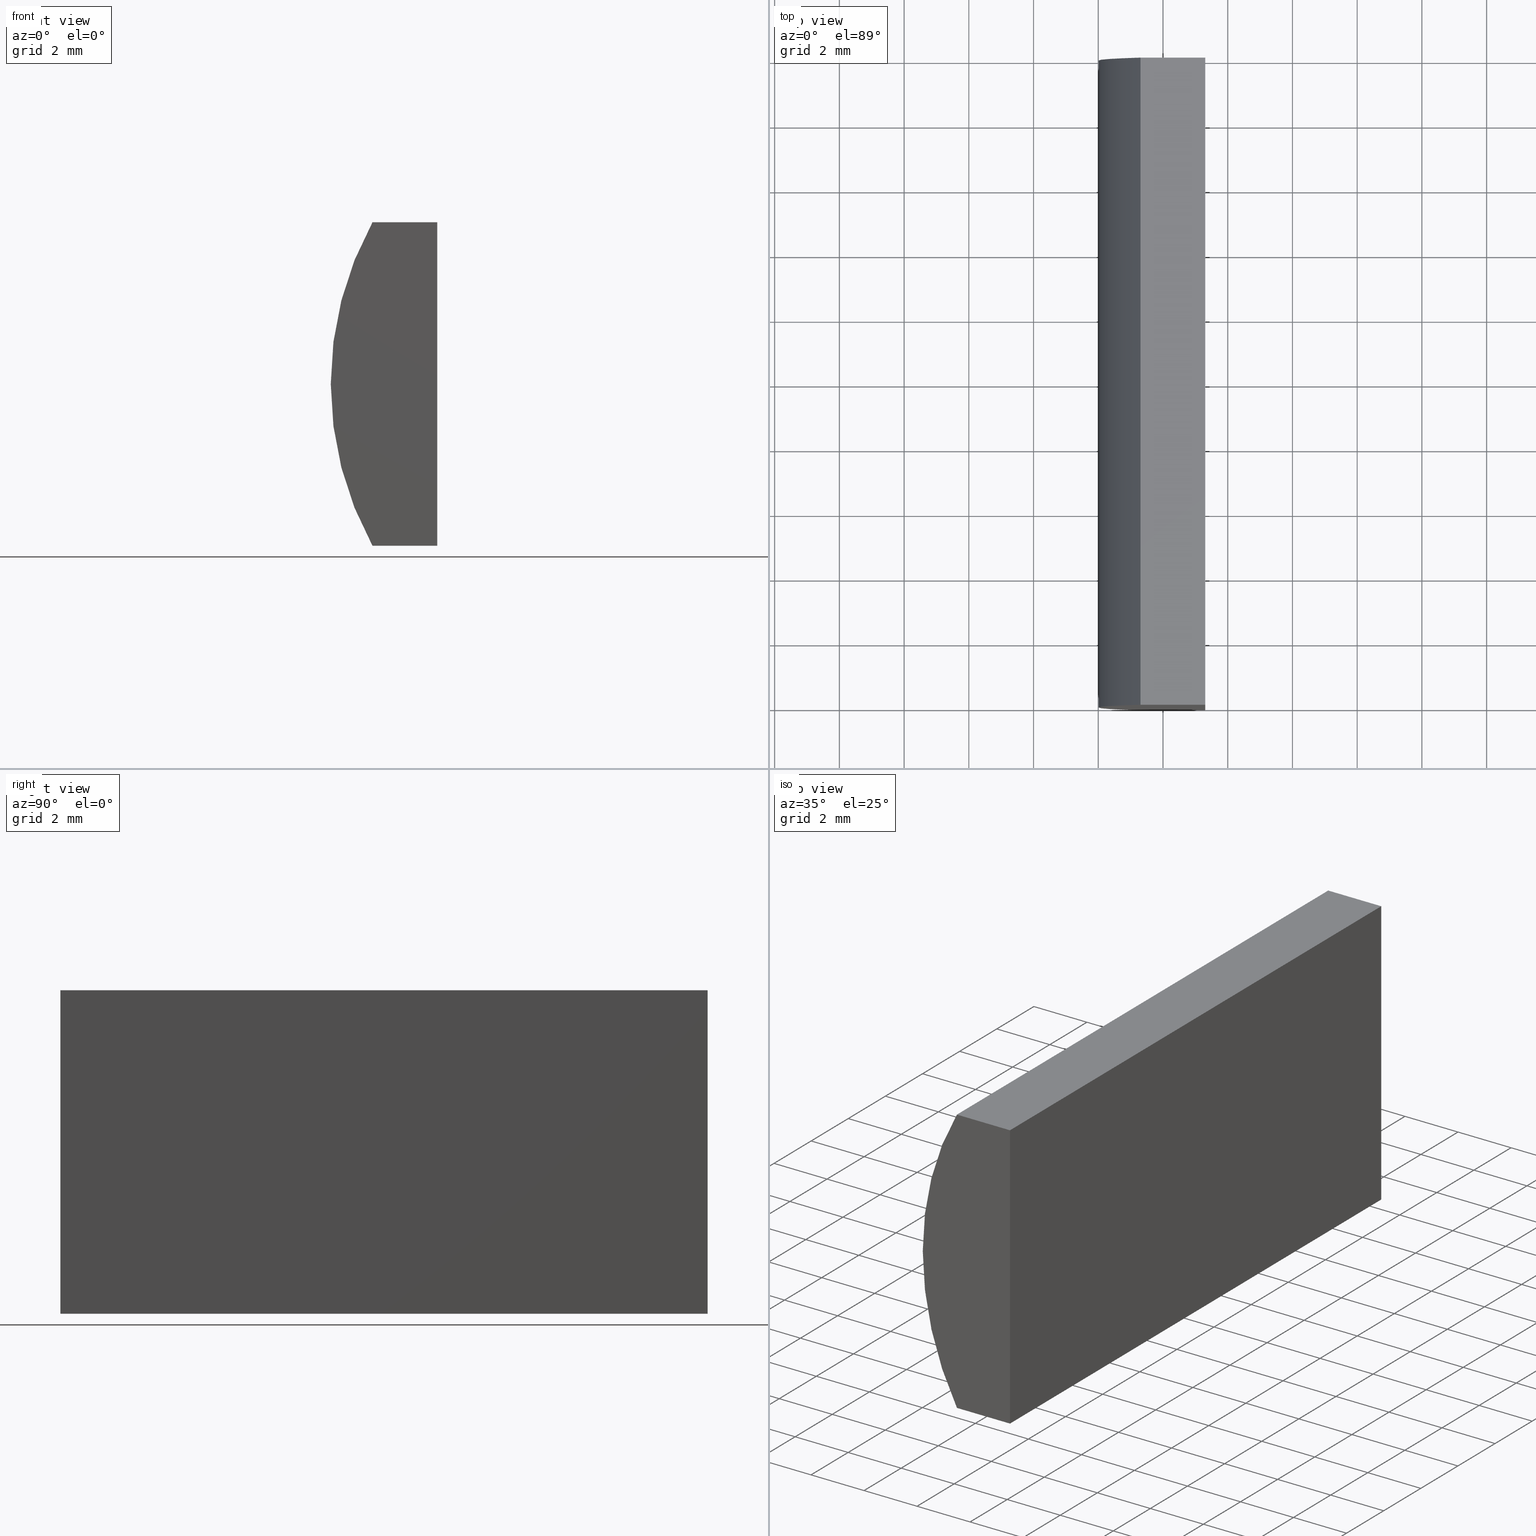
[diagram: canonical four-view strip — front | top / right | iso, engineering-drawing reading convention]
A machine part, canonical four-view strip (front | top / right | iso — engineering-drawing reading convention). The complete STEP part file that produces these views, byte-faithful:
ISO-10303-21;
HEADER;
FILE_DESCRIPTION (( 'STEP AP214' ),
    '1' );
FILE_NAME ('155026.STEP',
    '2019-06-17T05:59:15',
    ( 'user' ),
    ( '΢���й�' ),
    'SwSTEP 2.0',
    'SolidWorks 2016',
    '' );
FILE_SCHEMA (( 'AUTOMOTIVE_DESIGN' ));
ENDSEC;

DATA;
#1 = ORIENTED_EDGE ( 'NONE', *, *, #51, .T. ) ;
#2 = FACE_OUTER_BOUND ( 'NONE', #109, .T. ) ;
#3 = ADVANCED_FACE ( 'NONE', ( #134 ), #191, .F. ) ;
#4 = DIRECTION ( 'NONE',  ( 0.0000000000000000000, -0.0000000000000000000, 1.000000000000000000 ) ) ;
#5 = LINE ( 'NONE', #129, #48 ) ;
#6 = EDGE_LOOP ( 'NONE', ( #198, #196, #116, #80 ) ) ;
#7 = DIRECTION ( 'NONE',  ( 0.0000000000000000000, 0.0000000000000000000, 1.000000000000000000 ) ) ;
#8 = VERTEX_POINT ( 'NONE', #71 ) ;
#9 = PRESENTATION_STYLE_ASSIGNMENT (( #63 ) ) ;
#10 = VECTOR ( 'NONE', #160, 1000.000000000000000 ) ;
#11 = ORIENTED_EDGE ( 'NONE', *, *, #159, .F. ) ;
#12 = ORIENTED_EDGE ( 'NONE', *, *, #164, .F. ) ;
#13 = CARTESIAN_POINT ( 'NONE',  ( 4.355204334851265500, 0.0000000000000000000, 4.286263797015675000E-017 ) ) ;
#14 = DIRECTION ( 'NONE',  ( -1.000000000000000000, 0.0000000000000000000, -0.0000000000000000000 ) ) ;
#15 = PLANE ( 'NONE',  #77 ) ;
#16 = CARTESIAN_POINT ( 'NONE',  ( 4.355204334851265500, 0.0000000000000000000, 4.286263797015675000E-017 ) ) ;
#17 = EDGE_CURVE ( 'NONE', #127, #121, #94, .T. ) ;
#18 = CARTESIAN_POINT ( 'NONE',  ( -2.694795665148737900, 20.00000000000000000, -5.000000000000000000 ) ) ;
#19 = PRESENTATION_LAYER_ASSIGNMENT (  '', '', ( #41 ) ) ;
#20 = CARTESIAN_POINT ( 'NONE',  ( -4.695519393116569500, 0.0000000000000000000, -5.000000000000000000 ) ) ;
#21 =( NAMED_UNIT ( * ) SI_UNIT ( $, .STERADIAN. ) SOLID_ANGLE_UNIT ( ) );
#22 = VERTEX_POINT ( 'NONE', #65 ) ;
#23 =( LENGTH_UNIT ( ) NAMED_UNIT ( * ) SI_UNIT ( .MILLI., .METRE. ) );
#24 = EDGE_LOOP ( 'NONE', ( #140, #99, #59, #114 ) ) ;
#25 = SURFACE_SIDE_STYLE ('',( #39 ) ) ;
#26 = PLANE ( 'NONE',  #112 ) ;
#27 = VECTOR ( 'NONE', #29, 1000.000000000000000 ) ;
#28 = CARTESIAN_POINT ( 'NONE',  ( -2.694795665148737900, 20.00000000000000000, -5.000000000000000000 ) ) ;
#29 = DIRECTION ( 'NONE',  ( -3.469446951953614200E-016, -0.0000000000000000000, -1.000000000000000000 ) ) ;
#30 = CARTESIAN_POINT ( 'NONE',  ( -2.694795665148734400, 20.00000000000000000, 5.000000000000000000 ) ) ;
#31 = DIRECTION ( 'NONE',  ( -0.0000000000000000000, -1.000000000000000000, -0.0000000000000000000 ) ) ;
#32 = PLANE ( 'NONE',  #87 ) ;
#33 = PRODUCT_CONTEXT ( 'NONE', #73, 'mechanical' ) ;
#34 = VECTOR ( 'NONE', #78, 1000.000000000000000 ) ;
#35 = PRODUCT_RELATED_PRODUCT_CATEGORY ( 'part', '', ( #189 ) ) ;
#36 = CARTESIAN_POINT ( 'NONE',  ( -2.694795665148734400, 20.00000000000000000, 5.000000000000000000 ) ) ;
#37 = VERTEX_POINT ( 'NONE', #67 ) ;
#38 = AXIS2_PLACEMENT_3D ( 'NONE', #13, #83, #178 ) ;
#39 = SURFACE_STYLE_FILL_AREA ( #69 ) ;
#40 = CARTESIAN_POINT ( 'NONE',  ( 4.355204334851265500, 20.00000000000000000, 4.286263797015675000E-017 ) ) ;
#41 = STYLED_ITEM ( 'NONE', ( #9 ), #173 ) ;
#42 = SURFACE_STYLE_USAGE ( .BOTH. , #101 ) ;
#43 = FILL_AREA_STYLE_COLOUR ( '', #120 ) ;
#44 = ADVANCED_FACE ( 'NONE', ( #139 ), #32, .T. ) ;
#45 = SHAPE_DEFINITION_REPRESENTATION ( #88, #133 ) ;
#46 = DIRECTION ( 'NONE',  ( 3.469446951953614200E-016, 0.0000000000000000000, 1.000000000000000000 ) ) ;
#47 = PRODUCT_DEFINITION ( 'δ֪', '', #72, #60 ) ;
#48 = VECTOR ( 'NONE', #162, 1000.000000000000000 ) ;
#49 = DIRECTION ( 'NONE',  ( 1.000000000000000000, 0.0000000000000000000, 0.0000000000000000000 ) ) ;
#50 = CARTESIAN_POINT ( 'NONE',  ( 4.355204334851265500, 20.00000000000000000, 4.286263797015675000E-017 ) ) ;
#51 = EDGE_CURVE ( 'NONE', #37, #149, #169, .T. ) ;
#52 = EDGE_CURVE ( 'NONE', #153, #8, #180, .T. ) ;
#53 = CARTESIAN_POINT ( 'NONE',  ( -2.694795665148737900, 0.0000000000000000000, -5.000000000000000000 ) ) ;
#54 = SURFACE_STYLE_FILL_AREA ( #194 ) ;
#55 = CIRCLE ( 'NONE', #38, 10.34000000000000000 ) ;
#56 = ADVANCED_FACE ( 'NONE', ( #151 ), #81, .F. ) ;
#57 = DIRECTION ( 'NONE',  ( 0.0000000000000000000, 0.0000000000000000000, -1.000000000000000000 ) ) ;
#58 = COLOUR_RGB ( '',1.000000000000000000, 1.000000000000000000, 1.000000000000000000 ) ;
#59 = ORIENTED_EDGE ( 'NONE', *, *, #171, .F. ) ;
#60 = PRODUCT_DEFINITION_CONTEXT ( 'detailed design', #181, 'design' ) ;
#61 = DIRECTION ( 'NONE',  ( -1.000000000000000000, -0.0000000000000000000, -0.0000000000000000000 ) ) ;
#62 = MECHANICAL_DESIGN_GEOMETRIC_PRESENTATION_REPRESENTATION (  '', ( #41 ), #102 ) ;
#63 = SURFACE_STYLE_USAGE ( .BOTH. , #25 ) ;
#64 = UNCERTAINTY_MEASURE_WITH_UNIT (LENGTH_MEASURE( 1.000000000000000100E-005 ), #123, 'distance_accuracy_value', 'NONE');
#65 = CARTESIAN_POINT ( 'NONE',  ( -4.695519393116569500, 20.00000000000000000, -5.000000000000000000 ) ) ;
#66 = DIRECTION ( 'NONE',  ( 1.000000000000000000, 0.0000000000000000000, 0.0000000000000000000 ) ) ;
#67 = CARTESIAN_POINT ( 'NONE',  ( -2.694795665148737900, 20.00000000000000000, -5.000000000000000000 ) ) ;
#68 = ORIENTED_EDGE ( 'NONE', *, *, #115, .F. ) ;
#69 = FILL_AREA_STYLE ('',( #43 ) ) ;
#70 = DIRECTION ( 'NONE',  ( 0.0000000000000000000, 1.000000000000000000, 0.0000000000000000000 ) ) ;
#71 = CARTESIAN_POINT ( 'NONE',  ( -4.695519393116569500, 0.0000000000000000000, 5.000000000000000000 ) ) ;
#72 = PRODUCT_DEFINITION_FORMATION_WITH_SPECIFIED_SOURCE ( '�κ�', '', #189, .NOT_KNOWN. ) ;
#73 = APPLICATION_CONTEXT ( 'automotive_design' ) ;
#74 = FACE_OUTER_BOUND ( 'NONE', #24, .T. ) ;
#75 =( NAMED_UNIT ( * ) PLANE_ANGLE_UNIT ( ) SI_UNIT ( $, .RADIAN. ) );
#76 = ADVANCED_FACE ( 'NONE', ( #2 ), #185, .T. ) ;
#77 = AXIS2_PLACEMENT_3D ( 'NONE', #200, #57, #14 ) ;
#78 = DIRECTION ( 'NONE',  ( -0.0000000000000000000, -1.000000000000000000, -0.0000000000000000000 ) ) ;
#79 = STYLED_ITEM ( 'NONE', ( #179 ), #133 ) ;
#80 = ORIENTED_EDGE ( 'NONE', *, *, #85, .T. ) ;
#81 = PLANE ( 'NONE',  #182 ) ;
#82 = APPLICATION_PROTOCOL_DEFINITION ( 'draft international standard', 'automotive_design', 1998, #181 ) ;
#83 = DIRECTION ( 'NONE',  ( 0.0000000000000000000, 1.000000000000000000, 0.0000000000000000000 ) ) ;
#84 = ORIENTED_EDGE ( 'NONE', *, *, #115, .T. ) ;
#85 = EDGE_CURVE ( 'NONE', #37, #22, #154, .T. ) ;
#86 = ORIENTED_EDGE ( 'NONE', *, *, #17, .T. ) ;
#87 = AXIS2_PLACEMENT_3D ( 'NONE', #50, #150, #4 ) ;
#88 = PRODUCT_DEFINITION_SHAPE ( 'NONE', 'NONE',  #47 ) ;
#89 = ORIENTED_EDGE ( 'NONE', *, *, #135, .T. ) ;
#90 = CARTESIAN_POINT ( 'NONE',  ( -4.695519393116569500, 20.00000000000000000, -5.000000000000000000 ) ) ;
#91 = CIRCLE ( 'NONE', #202, 10.34000000000000000 ) ;
#92 =( NAMED_UNIT ( * ) SI_UNIT ( $, .STERADIAN. ) SOLID_ANGLE_UNIT ( ) );
#93 = EDGE_LOOP ( 'NONE', ( #166, #96, #138, #1 ) ) ;
#94 = LINE ( 'NONE', #36, #34 ) ;
#95 =( NAMED_UNIT ( * ) SI_UNIT ( $, .STERADIAN. ) SOLID_ANGLE_UNIT ( ) );
#96 = ORIENTED_EDGE ( 'NONE', *, *, #135, .F. ) ;
#97 = EDGE_CURVE ( 'NONE', #8, #121, #117, .T. ) ;
#98 = FACE_OUTER_BOUND ( 'NONE', #93, .T. ) ;
#99 = ORIENTED_EDGE ( 'NONE', *, *, #17, .F. ) ;
#100 = VECTOR ( 'NONE', #66, 1000.000000000000000 ) ;
#101 = SURFACE_SIDE_STYLE ('',( #54 ) ) ;
#102 =( GEOMETRIC_REPRESENTATION_CONTEXT ( 3 ) GLOBAL_UNCERTAINTY_ASSIGNED_CONTEXT ( ( #165 ) ) GLOBAL_UNIT_ASSIGNED_CONTEXT ( ( #128, #75, #21 ) ) REPRESENTATION_CONTEXT ( 'NONE', 'WORKASPACE' ) );
#103 = EDGE_LOOP ( 'NONE', ( #193, #111, #12, #86 ) ) ;
#104 = VECTOR ( 'NONE', #31, 1000.000000000000000 ) ;
#105 = VECTOR ( 'NONE', #61, 1000.000000000000000 ) ;
#106 = VERTEX_POINT ( 'NONE', #20 ) ;
#107 = AXIS2_PLACEMENT_3D ( 'NONE', #40, #141, #126 ) ;
#108 = CARTESIAN_POINT ( 'NONE',  ( -2.694795665148734400, 0.0000000000000000000, 5.000000000000000000 ) ) ;
#109 = EDGE_LOOP ( 'NONE', ( #84, #176, #142, #89 ) ) ;
#110 = AXIS2_PLACEMENT_3D ( 'NONE', #28, #145, #46 ) ;
#111 = ORIENTED_EDGE ( 'NONE', *, *, #51, .F. ) ;
#112 = AXIS2_PLACEMENT_3D ( 'NONE', #90, #7, #184 ) ;
#113 = CARTESIAN_POINT ( 'NONE',  ( -4.695519393116569500, 20.00000000000000000, 5.000000000000000000 ) ) ;
#114 = ORIENTED_EDGE ( 'NONE', *, *, #52, .T. ) ;
#115 = EDGE_CURVE ( 'NONE', #106, #8, #55, .T. ) ;
#116 = ORIENTED_EDGE ( 'NONE', *, *, #164, .T. ) ;
#117 = LINE ( 'NONE', #119, #100 ) ;
#118 = UNCERTAINTY_MEASURE_WITH_UNIT (LENGTH_MEASURE( 1.000000000000000100E-005 ), #23, 'distance_accuracy_value', 'NONE');
#119 = CARTESIAN_POINT ( 'NONE',  ( -4.695519393116569500, 0.0000000000000000000, 5.000000000000000000 ) ) ;
#120 = COLOUR_RGB ( '',1.000000000000000000, 1.000000000000000000, 1.000000000000000000 ) ;
#121 = VERTEX_POINT ( 'NONE', #108 ) ;
#122 = DIRECTION ( 'NONE',  ( 0.0000000000000000000, 0.0000000000000000000, 1.000000000000000000 ) ) ;
#123 =( LENGTH_UNIT ( ) NAMED_UNIT ( * ) SI_UNIT ( .MILLI., .METRE. ) );
#124 = CARTESIAN_POINT ( 'NONE',  ( 0.0000000000000000000, 0.0000000000000000000, 0.0000000000000000000 ) ) ;
#125 = LINE ( 'NONE', #18, #27 ) ;
#126 = DIRECTION ( 'NONE',  ( 0.0000000000000000000, 0.0000000000000000000, -1.000000000000000000 ) ) ;
#127 = VERTEX_POINT ( 'NONE', #30 ) ;
#128 =( LENGTH_UNIT ( ) NAMED_UNIT ( * ) SI_UNIT ( .MILLI., .METRE. ) );
#129 = CARTESIAN_POINT ( 'NONE',  ( -4.695519393116569500, 0.0000000000000000000, -5.000000000000000000 ) ) ;
#130 = CARTESIAN_POINT ( 'NONE',  ( -4.695519393116569500, 20.00000000000000000, 5.000000000000000000 ) ) ;
#131 = LINE ( 'NONE', #53, #137 ) ;
#132 = APPLICATION_PROTOCOL_DEFINITION ( 'draft international standard', 'automotive_design', 1998, #73 ) ;
#133 = ADVANCED_BREP_SHAPE_REPRESENTATION ( '155026', ( #173, #156 ), #204 ) ;
#134 = FACE_OUTER_BOUND ( 'NONE', #103, .T. ) ;
#135 = EDGE_CURVE ( 'NONE', #22, #106, #192, .T. ) ;
#136 = CARTESIAN_POINT ( 'NONE',  ( -4.695519393116569500, 20.00000000000000000, -5.000000000000000000 ) ) ;
#137 = VECTOR ( 'NONE', #152, 1000.000000000000000 ) ;
#138 = ORIENTED_EDGE ( 'NONE', *, *, #85, .F. ) ;
#139 = FACE_OUTER_BOUND ( 'NONE', #6, .T. ) ;
#140 = ORIENTED_EDGE ( 'NONE', *, *, #97, .T. ) ;
#141 = DIRECTION ( 'NONE',  ( -0.0000000000000000000, -1.000000000000000000, -0.0000000000000000000 ) ) ;
#142 = ORIENTED_EDGE ( 'NONE', *, *, #147, .F. ) ;
#143 = CLOSED_SHELL ( 'NONE', ( #76, #174, #3, #186, #44, #56 ) ) ;
#144 = CARTESIAN_POINT ( 'NONE',  ( 4.355204334851265500, 20.00000000000000000, 4.286263797015675000E-017 ) ) ;
#145 = DIRECTION ( 'NONE',  ( -1.000000000000000000, 0.0000000000000000000, 3.469446951953614200E-016 ) ) ;
#146 = DIRECTION ( 'NONE',  ( 0.0000000000000000000, 1.000000000000000000, 0.0000000000000000000 ) ) ;
#147 = EDGE_CURVE ( 'NONE', #22, #153, #91, .T. ) ;
#148 =( GEOMETRIC_REPRESENTATION_CONTEXT ( 3 ) GLOBAL_UNCERTAINTY_ASSIGNED_CONTEXT ( ( #118 ) ) GLOBAL_UNIT_ASSIGNED_CONTEXT ( ( #23, #201, #92 ) ) REPRESENTATION_CONTEXT ( 'NONE', 'WORKASPACE' ) );
#149 = VERTEX_POINT ( 'NONE', #167 ) ;
#150 = DIRECTION ( 'NONE',  ( 0.0000000000000000000, 1.000000000000000000, 0.0000000000000000000 ) ) ;
#151 = FACE_OUTER_BOUND ( 'NONE', #155, .T. ) ;
#152 = DIRECTION ( 'NONE',  ( -3.469446951953614200E-016, -0.0000000000000000000, -1.000000000000000000 ) ) ;
#153 = VERTEX_POINT ( 'NONE', #130 ) ;
#154 = LINE ( 'NONE', #197, #105 ) ;
#155 = EDGE_LOOP ( 'NONE', ( #68, #11, #203, #188 ) ) ;
#156 = AXIS2_PLACEMENT_3D ( 'NONE', #124, #158, #49 ) ;
#157 = CARTESIAN_POINT ( 'NONE',  ( -4.695519393116569500, 20.00000000000000000, 5.000000000000000000 ) ) ;
#158 = DIRECTION ( 'NONE',  ( 0.0000000000000000000, 0.0000000000000000000, 1.000000000000000000 ) ) ;
#159 = EDGE_CURVE ( 'NONE', #149, #106, #5, .T. ) ;
#160 = DIRECTION ( 'NONE',  ( 1.000000000000000000, 0.0000000000000000000, 0.0000000000000000000 ) ) ;
#161 = VECTOR ( 'NONE', #168, 1000.000000000000000 ) ;
#162 = DIRECTION ( 'NONE',  ( -1.000000000000000000, -0.0000000000000000000, -0.0000000000000000000 ) ) ;
#163 = FILL_AREA_STYLE_COLOUR ( '', #58 ) ;
#164 = EDGE_CURVE ( 'NONE', #127, #37, #125, .T. ) ;
#165 = UNCERTAINTY_MEASURE_WITH_UNIT (LENGTH_MEASURE( 1.000000000000000100E-005 ), #128, 'distance_accuracy_value', 'NONE');
#166 = ORIENTED_EDGE ( 'NONE', *, *, #159, .T. ) ;
#167 = CARTESIAN_POINT ( 'NONE',  ( -2.694795665148737900, 0.0000000000000000000, -5.000000000000000000 ) ) ;
#168 = DIRECTION ( 'NONE',  ( -0.0000000000000000000, -1.000000000000000000, -0.0000000000000000000 ) ) ;
#169 = LINE ( 'NONE', #170, #104 ) ;
#170 = CARTESIAN_POINT ( 'NONE',  ( -2.694795665148737900, 20.00000000000000000, -5.000000000000000000 ) ) ;
#171 = EDGE_CURVE ( 'NONE', #153, #127, #199, .T. ) ;
#172 = MECHANICAL_DESIGN_GEOMETRIC_PRESENTATION_REPRESENTATION (  '', ( #79 ), #148 ) ;
#173 = MANIFOLD_SOLID_BREP ( '͹̨-����1', #143 ) ;
#174 = ADVANCED_FACE ( 'NONE', ( #74 ), #15, .F. ) ;
#175 = VECTOR ( 'NONE', #183, 1000.000000000000000 ) ;
#176 = ORIENTED_EDGE ( 'NONE', *, *, #52, .F. ) ;
#177 =( NAMED_UNIT ( * ) PLANE_ANGLE_UNIT ( ) SI_UNIT ( $, .RADIAN. ) );
#178 = DIRECTION ( 'NONE',  ( 0.0000000000000000000, 0.0000000000000000000, 1.000000000000000000 ) ) ;
#179 = PRESENTATION_STYLE_ASSIGNMENT (( #42 ) ) ;
#180 = LINE ( 'NONE', #113, #161 ) ;
#181 = APPLICATION_CONTEXT ( 'automotive_design' ) ;
#182 = AXIS2_PLACEMENT_3D ( 'NONE', #16, #70, #187 ) ;
#183 = DIRECTION ( 'NONE',  ( -0.0000000000000000000, -1.000000000000000000, -0.0000000000000000000 ) ) ;
#184 = DIRECTION ( 'NONE',  ( 1.000000000000000000, 0.0000000000000000000, -0.0000000000000000000 ) ) ;
#185 = CYLINDRICAL_SURFACE ( 'NONE', #107, 10.34000000000000000 ) ;
#186 = ADVANCED_FACE ( 'NONE', ( #98 ), #26, .F. ) ;
#187 = DIRECTION ( 'NONE',  ( 0.0000000000000000000, -0.0000000000000000000, 1.000000000000000000 ) ) ;
#188 = ORIENTED_EDGE ( 'NONE', *, *, #97, .F. ) ;
#189 = PRODUCT ( '155026', '155026', '', ( #33 ) ) ;
#190 = PRESENTATION_LAYER_ASSIGNMENT (  '', '', ( #79 ) ) ;
#191 = PLANE ( 'NONE',  #110 ) ;
#192 = LINE ( 'NONE', #136, #175 ) ;
#193 = ORIENTED_EDGE ( 'NONE', *, *, #195, .T. ) ;
#194 = FILL_AREA_STYLE ('',( #163 ) ) ;
#195 = EDGE_CURVE ( 'NONE', #121, #149, #131, .T. ) ;
#196 = ORIENTED_EDGE ( 'NONE', *, *, #171, .T. ) ;
#197 = CARTESIAN_POINT ( 'NONE',  ( -4.695519393116569500, 20.00000000000000000, -5.000000000000000000 ) ) ;
#198 = ORIENTED_EDGE ( 'NONE', *, *, #147, .T. ) ;
#199 = LINE ( 'NONE', #157, #10 ) ;
#200 = CARTESIAN_POINT ( 'NONE',  ( -4.695519393116569500, 20.00000000000000000, 5.000000000000000000 ) ) ;
#201 =( NAMED_UNIT ( * ) PLANE_ANGLE_UNIT ( ) SI_UNIT ( $, .RADIAN. ) );
#202 = AXIS2_PLACEMENT_3D ( 'NONE', #144, #146, #122 ) ;
#203 = ORIENTED_EDGE ( 'NONE', *, *, #195, .F. ) ;
#204 =( GEOMETRIC_REPRESENTATION_CONTEXT ( 3 ) GLOBAL_UNCERTAINTY_ASSIGNED_CONTEXT ( ( #64 ) ) GLOBAL_UNIT_ASSIGNED_CONTEXT ( ( #123, #177, #95 ) ) REPRESENTATION_CONTEXT ( 'NONE', 'WORKASPACE' ) );
ENDSEC;
END-ISO-10303-21;
